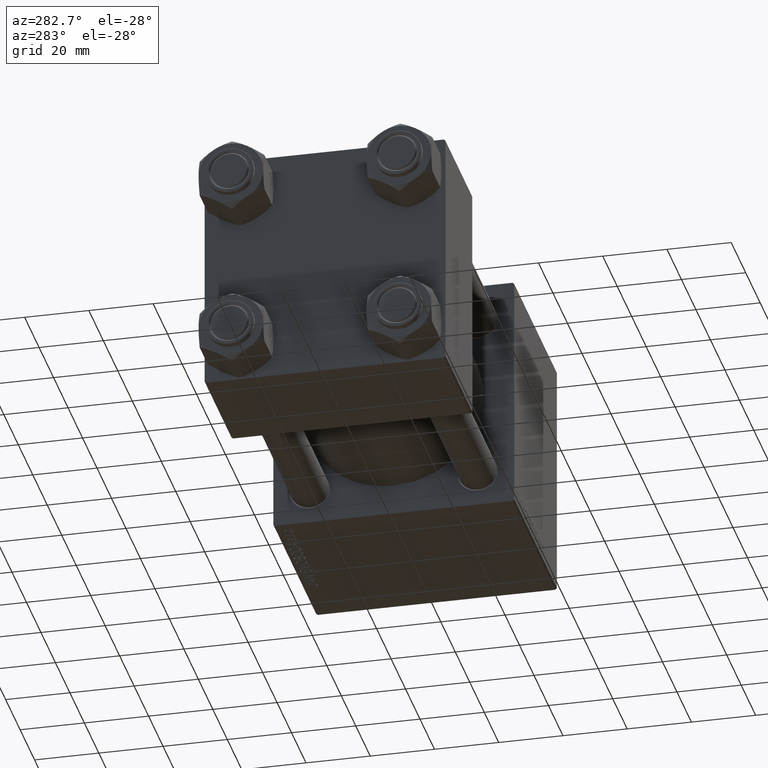
[diagram: clean part render]
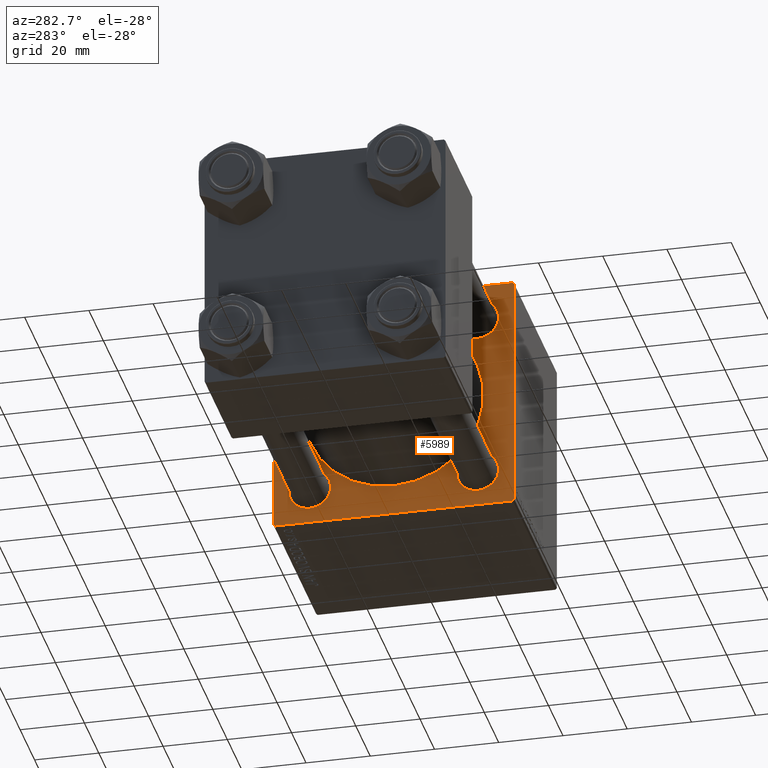
[diagram: same view with one face highlighted and labeled with its STEP entity id]
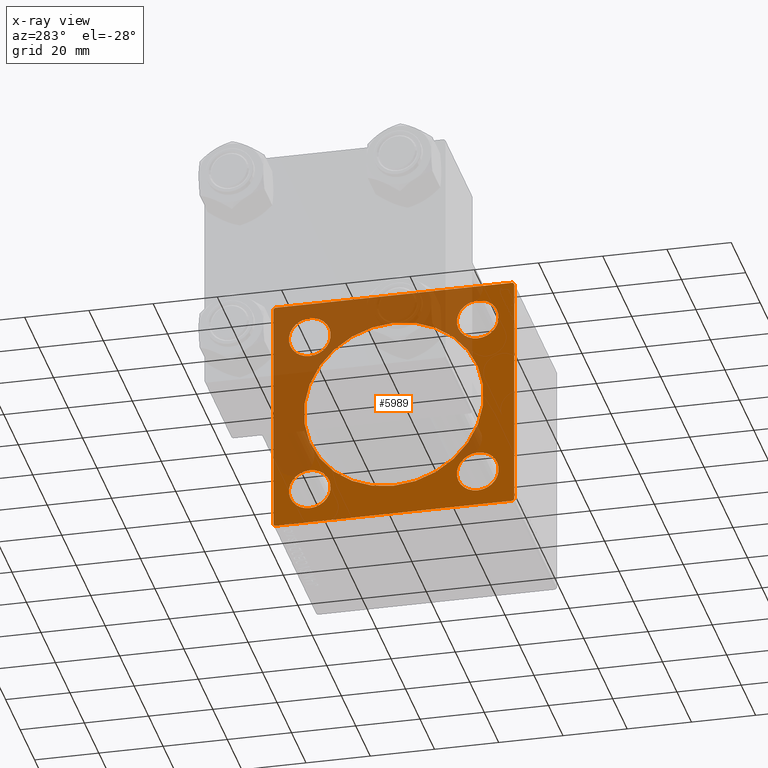
[diagram: x-ray of the same camera — body ghosted, the highlighted face saturated]
A machine part, auxiliary view. The second image highlights one B-rep face of the part: STEP entity #5989.
The next image is the same camera in x-ray: the body ghosted, the highlighted face saturated — about 46% of this face is hidden behind the body in this view.
In plain terms, the highlighted planar face has unit normal (-1, 0, 0).
Its self-contained STEP definition (entity closure, byte-faithful):
#28 = VERTEX_POINT ( 'NONE', #12221 ) ;
#158 = ORIENTED_EDGE ( 'NONE', *, *, #4953, .T. ) ;
#191 = CIRCLE ( 'NONE', #48152, 6.500000000000015987 ) ;
#1314 = DIRECTION ( 'NONE',  ( 0.000000000000000000, 0.000000000000000000, 1.000000000000000000 ) ) ;
#1337 = DIRECTION ( 'NONE',  ( 1.000000000000000000, 0.000000000000000000, -0.000000000000000000 ) ) ;
#1489 = ORIENTED_EDGE ( 'NONE', *, *, #29629, .T. ) ;
#1803 = CARTESIAN_POINT ( 'NONE',  ( 95.00000000000000000, 26.14999999999999858, 19.64999999999999147 ) ) ;
#2100 = EDGE_LOOP ( 'NONE', ( #31127, #28909 ) ) ;
#2309 = DIRECTION ( 'NONE',  ( 1.000000000000000000, 0.000000000000000000, -0.000000000000000000 ) ) ;
#2394 = LINE ( 'NONE', #29661, #17576 ) ;
#3192 = VECTOR ( 'NONE', #34418, 1000.000000000000000 ) ;
#4350 = VECTOR ( 'NONE', #48952, 999.9999999999998863 ) ;
#4354 = CARTESIAN_POINT ( 'NONE',  ( 95.00000000000000000, -37.50000000000000000, 36.99999999999995026 ) ) ;
#4546 = ORIENTED_EDGE ( 'NONE', *, *, #32161, .T. ) ;
#4953 = EDGE_CURVE ( 'NONE', #24096, #26959, #191, .T. ) ;
#5405 = DIRECTION ( 'NONE',  ( 0.000000000000000000, -1.000000000000000000, 0.000000000000000000 ) ) ;
#5989 = ADVANCED_FACE ( 'NONE', ( #48733, #21794, #44933, #6247, #37304, #25852 ), #41368, .T. ) ;
#6229 = CIRCLE ( 'NONE', #10263, 6.500000000000015987 ) ;
#6247 = FACE_BOUND ( 'NONE', #9758, .T. ) ;
#6253 = ORIENTED_EDGE ( 'NONE', *, *, #33520, .T. ) ;
#6475 = ORIENTED_EDGE ( 'NONE', *, *, #23081, .T. ) ;
#6674 = LINE ( 'NONE', #10495, #14333 ) ;
#6912 = CARTESIAN_POINT ( 'NONE',  ( 95.00000000000000000, 8.269258236473776482E-16, -28.00000000000000000 ) ) ;
#6957 = VERTEX_POINT ( 'NONE', #17969 ) ;
#8514 = EDGE_CURVE ( 'NONE', #34563, #37565, #45371, .T. ) ;
#9187 = AXIS2_PLACEMENT_3D ( 'NONE', #32685, #48195, #13333 ) ;
#9232 = DIRECTION ( 'NONE',  ( 0.000000000000000000, 0.000000000000000000, 1.000000000000000000 ) ) ;
#9476 = CARTESIAN_POINT ( 'NONE',  ( 95.00000000000000000, 37.50000000000000000, -36.99999999999999289 ) ) ;
#9750 = CARTESIAN_POINT ( 'NONE',  ( 95.00000000000000000, -26.14999999999999147, -19.64999999999999503 ) ) ;
#9758 = EDGE_LOOP ( 'NONE', ( #1489, #158 ) ) ;
#9858 = DIRECTION ( 'NONE',  ( 0.000000000000000000, -1.000000000000000000, -1.850371707708594316E-16 ) ) ;
#9953 = CARTESIAN_POINT ( 'NONE',  ( 95.00000000000000000, 26.14999999999999858, 26.15000000000000213 ) ) ;
#10113 = CIRCLE ( 'NONE', #29650, 6.500000000000015987 ) ;
#10263 = AXIS2_PLACEMENT_3D ( 'NONE', #37394, #33082, #22126 ) ;
#10495 = CARTESIAN_POINT ( 'NONE',  ( 95.00000000000000000, -37.24999999999997158, 37.24999999999997158 ) ) ;
#10498 = CARTESIAN_POINT ( 'NONE',  ( 95.00000000000000000, 37.50000000000000000, 37.49999999999999289 ) ) ;
#11169 = CARTESIAN_POINT ( 'NONE',  ( 95.00000000000000000, -37.50000000000000000, 37.49999999999997868 ) ) ;
#11432 = ORIENTED_EDGE ( 'NONE', *, *, #17504, .F. ) ;
#11550 = CARTESIAN_POINT ( 'NONE',  ( 95.00000000000000000, 26.14999999999999858, 32.65000000000001990 ) ) ;
#11551 = CARTESIAN_POINT ( 'NONE',  ( 95.00000000000000000, -37.50000000000000711, -37.00000000000000711 ) ) ;
#11674 = DIRECTION ( 'NONE',  ( 0.000000000000000000, 0.000000000000000000, 1.000000000000000000 ) ) ;
#11856 = CARTESIAN_POINT ( 'NONE',  ( 95.00000000000000000, -26.14999999999999147, 26.15000000000000924 ) ) ;
#12221 = CARTESIAN_POINT ( 'NONE',  ( 95.00000000000000000, 26.14999999999999858, -32.65000000000001990 ) ) ;
#12338 = CARTESIAN_POINT ( 'NONE',  ( 95.00000000000000000, -36.99999999999997158, 37.49999999999997868 ) ) ;
#13040 = CARTESIAN_POINT ( 'NONE',  ( 95.00000000000000000, -26.14999999999999147, 26.15000000000000924 ) ) ;
#13291 = EDGE_CURVE ( 'NONE', #15745, #45252, #36962, .T. ) ;
#13333 = DIRECTION ( 'NONE',  ( 0.000000000000000000, 0.000000000000000000, -1.000000000000000000 ) ) ;
#13491 = AXIS2_PLACEMENT_3D ( 'NONE', #13040, #1337, #9232 ) ;
#13570 = CARTESIAN_POINT ( 'NONE',  ( 95.00000000000000000, 37.50000000000000000, 36.99999999999999289 ) ) ;
#14133 = CARTESIAN_POINT ( 'NONE',  ( 95.00000000000000000, 0.000000000000000000, 0.000000000000000000 ) ) ;
#14214 = CARTESIAN_POINT ( 'NONE',  ( 95.00000000000000000, 26.14999999999999858, -26.15000000000000213 ) ) ;
#14249 = CARTESIAN_POINT ( 'NONE',  ( 95.00000000000000000, 37.00000000000000000, -37.50000000000000000 ) ) ;
#14333 = VECTOR ( 'NONE', #40559, 1000.000000000000114 ) ;
#14593 = ORIENTED_EDGE ( 'NONE', *, *, #13291, .T. ) ;
#15564 = EDGE_LOOP ( 'NONE', ( #25495, #31111 ) ) ;
#15745 = VERTEX_POINT ( 'NONE', #14249 ) ;
#15918 = DIRECTION ( 'NONE',  ( 1.000000000000000000, 0.000000000000000000, -0.000000000000000000 ) ) ;
#16006 = EDGE_CURVE ( 'NONE', #28, #47309, #43306, .T. ) ;
#16239 = DIRECTION ( 'NONE',  ( 1.000000000000000000, 0.000000000000000000, -0.000000000000000000 ) ) ;
#16756 = LINE ( 'NONE', #31295, #31391 ) ;
#17176 = VECTOR ( 'NONE', #5405, 1000.000000000000000 ) ;
#17429 = LINE ( 'NONE', #24121, #4350 ) ;
#17438 = AXIS2_PLACEMENT_3D ( 'NONE', #9953, #2309, #48878 ) ;
#17504 = EDGE_CURVE ( 'NONE', #47845, #31201, #46021, .T. ) ;
#17576 = VECTOR ( 'NONE', #48225, 1000.000000000000000 ) ;
#17959 = DIRECTION ( 'NONE',  ( -1.000000000000000000, -0.000000000000000000, 0.000000000000000000 ) ) ;
#17969 = CARTESIAN_POINT ( 'NONE',  ( 95.00000000000000000, -2.602085213965210642E-15, 28.00000000000000000 ) ) ;
#18171 = ORIENTED_EDGE ( 'NONE', *, *, #22443, .T. ) ;
#20087 = DIRECTION ( 'NONE',  ( 0.000000000000000000, 0.7071067811865474617, -0.7071067811865474617 ) ) ;
#21794 = FACE_BOUND ( 'NONE', #44663, .T. ) ;
#22126 = DIRECTION ( 'NONE',  ( 0.000000000000000000, 0.000000000000000000, 1.000000000000000000 ) ) ;
#22443 = EDGE_CURVE ( 'NONE', #37565, #15745, #17429, .T. ) ;
#22680 = ORIENTED_EDGE ( 'NONE', *, *, #32435, .T. ) ;
#22686 = AXIS2_PLACEMENT_3D ( 'NONE', #14214, #33073, #29260 ) ;
#23081 = EDGE_CURVE ( 'NONE', #47580, #28262, #27152, .T. ) ;
#23222 = ORIENTED_EDGE ( 'NONE', *, *, #32896, .F. ) ;
#24096 = VERTEX_POINT ( 'NONE', #39511 ) ;
#24121 = CARTESIAN_POINT ( 'NONE',  ( 95.00000000000000000, 37.25000000000026290, -37.24999999999974420 ) ) ;
#24209 = EDGE_CURVE ( 'NONE', #28262, #47580, #37748, .T. ) ;
#24381 = CARTESIAN_POINT ( 'NONE',  ( 95.00000000000000000, 37.00000000000000000, 37.49999999999999289 ) ) ;
#25001 = CARTESIAN_POINT ( 'NONE',  ( 95.00000000000000000, -26.14999999999999147, -26.15000000000000924 ) ) ;
#25495 = ORIENTED_EDGE ( 'NONE', *, *, #36061, .T. ) ;
#25841 = EDGE_CURVE ( 'NONE', #49162, #36631, #10113, .T. ) ;
#25852 = FACE_OUTER_BOUND ( 'NONE', #27929, .T. ) ;
#26155 = VECTOR ( 'NONE', #41443, 1000.000000000000000 ) ;
#26959 = VERTEX_POINT ( 'NONE', #9750 ) ;
#27152 = CIRCLE ( 'NONE', #43408, 6.500000000000008882 ) ;
#27567 = EDGE_CURVE ( 'NONE', #40312, #6957, #42729, .T. ) ;
#27929 = EDGE_LOOP ( 'NONE', ( #14593, #4546, #11432, #6253, #23222, #34450, #44131, #18171 ) ) ;
#28246 = DIRECTION ( 'NONE',  ( 0.000000000000000000, 0.000000000000000000, -1.000000000000000000 ) ) ;
#28262 = VERTEX_POINT ( 'NONE', #1803 ) ;
#28389 = CIRCLE ( 'NONE', #22686, 6.500000000000015987 ) ;
#28909 = ORIENTED_EDGE ( 'NONE', *, *, #27567, .T. ) ;
#29224 = LINE ( 'NONE', #45234, #30605 ) ;
#29234 = CARTESIAN_POINT ( 'NONE',  ( 95.00000000000000000, 26.14999999999999858, -26.15000000000000213 ) ) ;
#29247 = VERTEX_POINT ( 'NONE', #12338 ) ;
#29260 = DIRECTION ( 'NONE',  ( 0.000000000000000000, 0.000000000000000000, 1.000000000000000000 ) ) ;
#29629 = EDGE_CURVE ( 'NONE', #26959, #24096, #6229, .T. ) ;
#29650 = AXIS2_PLACEMENT_3D ( 'NONE', #11856, #15918, #42915 ) ;
#29661 = CARTESIAN_POINT ( 'NONE',  ( 95.00000000000000000, -37.24999999999896261, -37.25000000000103029 ) ) ;
#29721 = AXIS2_PLACEMENT_3D ( 'NONE', #35872, #32305, #28246 ) ;
#30605 = VECTOR ( 'NONE', #9858, 1000.000000000000000 ) ;
#31031 = CARTESIAN_POINT ( 'NONE',  ( 95.00000000000000000, 26.14999999999999858, 26.15000000000000213 ) ) ;
#31111 = ORIENTED_EDGE ( 'NONE', *, *, #16006, .T. ) ;
#31127 = ORIENTED_EDGE ( 'NONE', *, *, #38237, .T. ) ;
#31201 = VERTEX_POINT ( 'NONE', #11551 ) ;
#31295 = CARTESIAN_POINT ( 'NONE',  ( 95.00000000000000000, 37.25000000000000000, 37.25000000000000000 ) ) ;
#31381 = CARTESIAN_POINT ( 'NONE',  ( 95.00000000000000000, -36.99999999999998579, -37.50000000000000000 ) ) ;
#31391 = VECTOR ( 'NONE', #20087, 1000.000000000000114 ) ;
#31857 = EDGE_CURVE ( 'NONE', #41515, #34563, #16756, .T. ) ;
#31866 = CIRCLE ( 'NONE', #9187, 28.00000000000000000 ) ;
#32161 = EDGE_CURVE ( 'NONE', #45252, #31201, #2394, .T. ) ;
#32305 = DIRECTION ( 'NONE',  ( 1.000000000000000000, 0.000000000000000000, 0.000000000000000000 ) ) ;
#32435 = EDGE_CURVE ( 'NONE', #36631, #49162, #49239, .T. ) ;
#32685 = CARTESIAN_POINT ( 'NONE',  ( 95.00000000000000000, -2.602085213965210642E-15, 0.000000000000000000 ) ) ;
#32896 = EDGE_CURVE ( 'NONE', #41515, #29247, #29224, .T. ) ;
#33073 = DIRECTION ( 'NONE',  ( 1.000000000000000000, 0.000000000000000000, -0.000000000000000000 ) ) ;
#33082 = DIRECTION ( 'NONE',  ( 1.000000000000000000, 0.000000000000000000, -0.000000000000000000 ) ) ;
#33520 = EDGE_CURVE ( 'NONE', #47845, #29247, #6674, .T. ) ;
#33624 = ORIENTED_EDGE ( 'NONE', *, *, #25841, .T. ) ;
#34190 = CARTESIAN_POINT ( 'NONE',  ( 95.00000000000000000, -26.14999999999999147, 19.64999999999999147 ) ) ;
#34418 = DIRECTION ( 'NONE',  ( 0.000000000000000000, 0.000000000000000000, -1.000000000000000000 ) ) ;
#34450 = ORIENTED_EDGE ( 'NONE', *, *, #31857, .T. ) ;
#34563 = VERTEX_POINT ( 'NONE', #13570 ) ;
#35872 = CARTESIAN_POINT ( 'NONE',  ( 95.00000000000000000, -2.602085213965210642E-15, 0.000000000000000000 ) ) ;
#35876 = EDGE_LOOP ( 'NONE', ( #33624, #22680 ) ) ;
#36061 = EDGE_CURVE ( 'NONE', #47309, #28, #28389, .T. ) ;
#36631 = VERTEX_POINT ( 'NONE', #34190 ) ;
#36962 = LINE ( 'NONE', #47890, #17176 ) ;
#37121 = DIRECTION ( 'NONE',  ( 0.000000000000000000, 0.000000000000000000, 1.000000000000000000 ) ) ;
#37304 = FACE_BOUND ( 'NONE', #2100, .T. ) ;
#37394 = CARTESIAN_POINT ( 'NONE',  ( 95.00000000000000000, -26.14999999999999147, -26.15000000000000924 ) ) ;
#37565 = VERTEX_POINT ( 'NONE', #9476 ) ;
#37748 = CIRCLE ( 'NONE', #17438, 6.500000000000008882 ) ;
#38237 = EDGE_CURVE ( 'NONE', #6957, #40312, #31866, .T. ) ;
#39511 = CARTESIAN_POINT ( 'NONE',  ( 95.00000000000000000, -26.14999999999999147, -32.65000000000002700 ) ) ;
#40312 = VERTEX_POINT ( 'NONE', #6912 ) ;
#40530 = DIRECTION ( 'NONE',  ( 1.000000000000000000, 0.000000000000000000, -0.000000000000000000 ) ) ;
#40559 = DIRECTION ( 'NONE',  ( -0.000000000000000000, 0.7071067811865474617, 0.7071067811865474617 ) ) ;
#40914 = AXIS2_PLACEMENT_3D ( 'NONE', #14133, #17959, #48992 ) ;
#41368 = PLANE ( 'NONE',  #40914 ) ;
#41443 = DIRECTION ( 'NONE',  ( 0.000000000000000000, -9.251858538542972814E-17, -1.000000000000000000 ) ) ;
#41515 = VERTEX_POINT ( 'NONE', #24381 ) ;
#41673 = AXIS2_PLACEMENT_3D ( 'NONE', #29234, #44742, #37121 ) ;
#42729 = CIRCLE ( 'NONE', #29721, 28.00000000000000000 ) ;
#42915 = DIRECTION ( 'NONE',  ( 0.000000000000000000, 0.000000000000000000, 1.000000000000000000 ) ) ;
#43306 = CIRCLE ( 'NONE', #41673, 6.500000000000015987 ) ;
#43408 = AXIS2_PLACEMENT_3D ( 'NONE', #31031, #16239, #11674 ) ;
#44131 = ORIENTED_EDGE ( 'NONE', *, *, #8514, .T. ) ;
#44663 = EDGE_LOOP ( 'NONE', ( #6475, #48110 ) ) ;
#44742 = DIRECTION ( 'NONE',  ( 1.000000000000000000, 0.000000000000000000, -0.000000000000000000 ) ) ;
#44933 = FACE_BOUND ( 'NONE', #15564, .T. ) ;
#45234 = CARTESIAN_POINT ( 'NONE',  ( 95.00000000000000000, 37.50000000000000000, 37.49999999999999289 ) ) ;
#45252 = VERTEX_POINT ( 'NONE', #31381 ) ;
#45371 = LINE ( 'NONE', #10498, #3192 ) ;
#45661 = CARTESIAN_POINT ( 'NONE',  ( 95.00000000000000000, 26.14999999999999858, -19.64999999999998792 ) ) ;
#46021 = LINE ( 'NONE', #11169, #26155 ) ;
#47309 = VERTEX_POINT ( 'NONE', #45661 ) ;
#47580 = VERTEX_POINT ( 'NONE', #11550 ) ;
#47765 = CARTESIAN_POINT ( 'NONE',  ( 95.00000000000000000, -26.14999999999999147, 32.65000000000003411 ) ) ;
#47845 = VERTEX_POINT ( 'NONE', #4354 ) ;
#47890 = CARTESIAN_POINT ( 'NONE',  ( 95.00000000000000000, 37.50000000000000000, -37.50000000000000000 ) ) ;
#48110 = ORIENTED_EDGE ( 'NONE', *, *, #24209, .T. ) ;
#48152 = AXIS2_PLACEMENT_3D ( 'NONE', #25001, #40530, #1314 ) ;
#48195 = DIRECTION ( 'NONE',  ( 1.000000000000000000, 0.000000000000000000, 0.000000000000000000 ) ) ;
#48225 = DIRECTION ( 'NONE',  ( 0.000000000000000000, -0.7071067811865671127, 0.7071067811865279218 ) ) ;
#48733 = FACE_BOUND ( 'NONE', #35876, .T. ) ;
#48878 = DIRECTION ( 'NONE',  ( 0.000000000000000000, 0.000000000000000000, 1.000000000000000000 ) ) ;
#48952 = DIRECTION ( 'NONE',  ( -0.000000000000000000, -0.7071067811865425767, -0.7071067811865525687 ) ) ;
#48992 = DIRECTION ( 'NONE',  ( 0.000000000000000000, 0.000000000000000000, 1.000000000000000000 ) ) ;
#49162 = VERTEX_POINT ( 'NONE', #47765 ) ;
#49239 = CIRCLE ( 'NONE', #13491, 6.500000000000015987 ) ;